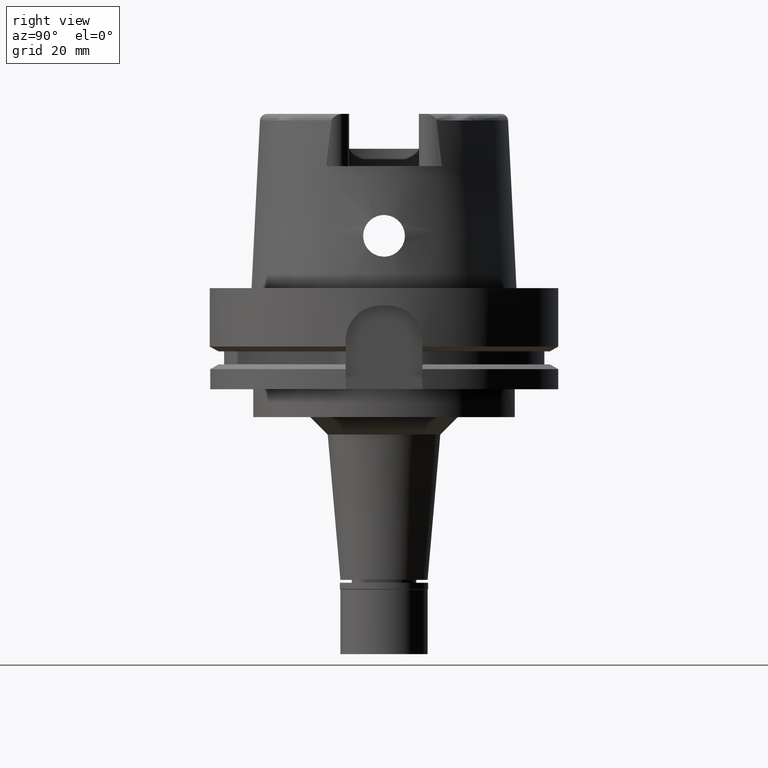
[diagram: clean part render]
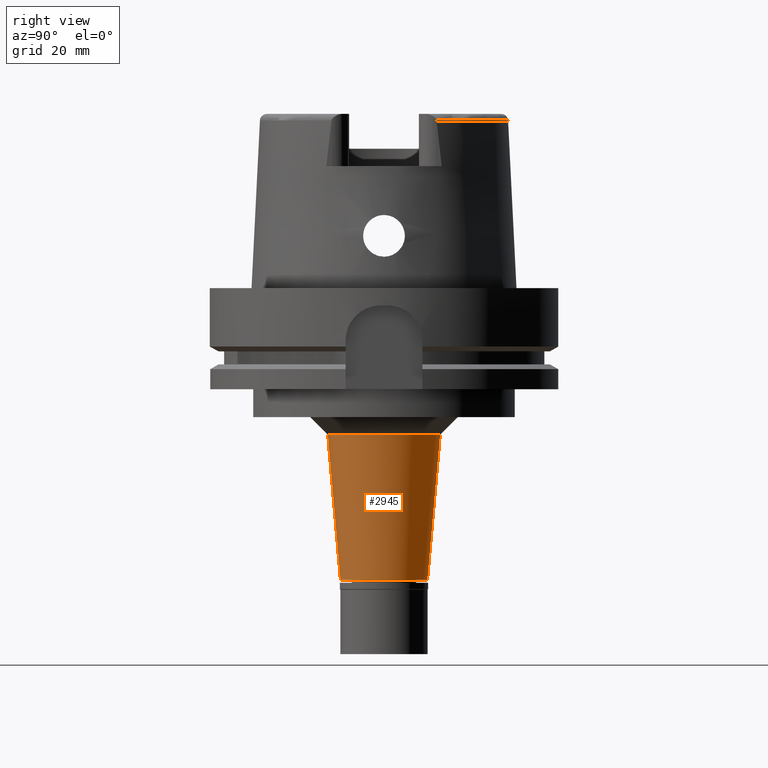
[diagram: same view with one face highlighted and labeled with its STEP entity id]
A machine part, right view. The second image highlights one B-rep face of the part: STEP entity #2945.
In plain terms, the highlighted conical surface has half-angle 5 deg.
Its self-contained STEP definition (entity closure, byte-faithful):
#105 = FACE_OUTER_BOUND ( 'NONE', #5527, .T. ) ;
#106 = VERTEX_POINT ( 'NONE', #3612 ) ;
#109 = CARTESIAN_POINT ( 'NONE',  ( 0.0000000000000000000, -16.14827726903000027, -42.00000000000000000 ) ) ;
#212 = DIRECTION ( 'NONE',  ( 0.0000000000000000000, 0.0000000000000000000, 1.000000000000000000 ) ) ;
#341 = CIRCLE ( 'NONE', #5018, 16.14827726904000116 ) ;
#444 = CARTESIAN_POINT ( 'NONE',  ( 0.0000000000000000000, 0.0000000000000000000, -83.70000000000000284 ) ) ;
#966 = CARTESIAN_POINT ( 'NONE',  ( 0.0000000000000000000, 16.14827726903000027, -42.00000000000000000 ) ) ;
#979 = CARTESIAN_POINT ( 'NONE',  ( 0.0000000000000000000, 0.0000000000000000000, -62.85000000000000142 ) ) ;
#1024 = VECTOR ( 'NONE', #1435, 1000.000000000000114 ) ;
#1179 = EDGE_CURVE ( 'NONE', #5260, #5400, #341, .T. ) ;
#1273 = DIRECTION ( 'NONE',  ( 0.0000000000000000000, -1.000000000000000000, 0.0000000000000000000 ) ) ;
#1435 = DIRECTION ( 'NONE',  ( 0.0000000000000000000, -0.08715574274763414342, -0.9961946980917475436 ) ) ;
#1801 = ORIENTED_EDGE ( 'NONE', *, *, #1984, .T. ) ;
#1810 = ORIENTED_EDGE ( 'NONE', *, *, #1179, .F. ) ;
#1912 = CARTESIAN_POINT ( 'NONE',  ( 0.0000000000000000000, 0.0000000000000000000, -42.00000000000000000 ) ) ;
#1984 = EDGE_CURVE ( 'NONE', #5343, #106, #2002, .T. ) ;
#2002 = CIRCLE ( 'NONE', #4053, 12.50000000000000000 ) ;
#2046 = CARTESIAN_POINT ( 'NONE',  ( 0.0000000000000000000, -16.14827726903000027, -42.00000000000000000 ) ) ;
#2198 = DIRECTION ( 'NONE',  ( 0.0000000000000000000, 0.08715574274763414342, -0.9961946980917475436 ) ) ;
#2203 = AXIS2_PLACEMENT_3D ( 'NONE', #979, #4359, #4889 ) ;
#2538 = CARTESIAN_POINT ( 'NONE',  ( 0.0000000000000000000, -12.50000000000000000, -83.70000000000000284 ) ) ;
#2613 = LINE ( 'NONE', #109, #4272 ) ;
#2945 = ADVANCED_FACE ( 'NONE', ( #105 ), #4258, .T. ) ;
#3507 = EDGE_CURVE ( 'NONE', #5400, #106, #4825, .T. ) ;
#3612 = CARTESIAN_POINT ( 'NONE',  ( 0.0000000000000000000, 12.50000000000000000, -83.70000000000000284 ) ) ;
#3650 = DIRECTION ( 'NONE',  ( 0.0000000000000000000, -1.000000000000000000, 0.0000000000000000000 ) ) ;
#3725 = DIRECTION ( 'NONE',  ( 0.0000000000000000000, 0.0000000000000000000, 1.000000000000000000 ) ) ;
#3893 = EDGE_CURVE ( 'NONE', #5260, #5343, #2613, .T. ) ;
#4053 = AXIS2_PLACEMENT_3D ( 'NONE', #444, #3725, #1273 ) ;
#4258 = CONICAL_SURFACE ( 'NONE', #2203, 14.32413863452000058, 0.08726646259969973729 ) ;
#4272 = VECTOR ( 'NONE', #2198, 1000.000000000000114 ) ;
#4333 = ORIENTED_EDGE ( 'NONE', *, *, #3893, .T. ) ;
#4359 = DIRECTION ( 'NONE',  ( 0.0000000000000000000, 0.0000000000000000000, 1.000000000000000000 ) ) ;
#4688 = ORIENTED_EDGE ( 'NONE', *, *, #3507, .F. ) ;
#4756 = CARTESIAN_POINT ( 'NONE',  ( 0.0000000000000000000, 16.14827726903000027, -42.00000000000000000 ) ) ;
#4825 = LINE ( 'NONE', #966, #1024 ) ;
#4889 = DIRECTION ( 'NONE',  ( 0.0000000000000000000, 1.000000000000000000, 0.0000000000000000000 ) ) ;
#5018 = AXIS2_PLACEMENT_3D ( 'NONE', #1912, #212, #3650 ) ;
#5260 = VERTEX_POINT ( 'NONE', #2046 ) ;
#5343 = VERTEX_POINT ( 'NONE', #2538 ) ;
#5400 = VERTEX_POINT ( 'NONE', #4756 ) ;
#5527 = EDGE_LOOP ( 'NONE', ( #1810, #4333, #1801, #4688 ) ) ;